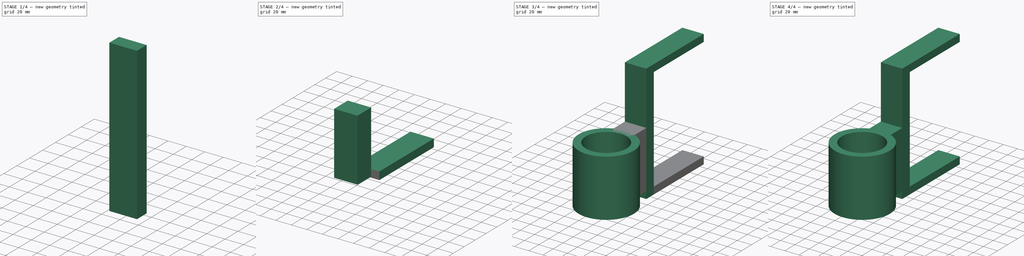
[diagram: build sequence overview — one tinted view per stage of 4, left to right]
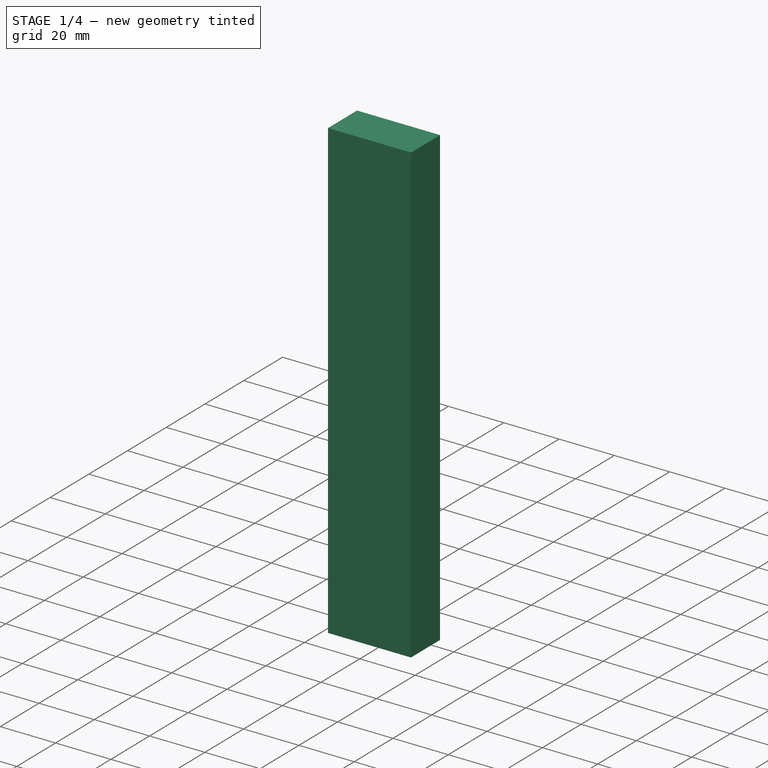
[diagram: stage 1 of 4 — iso view after this stage's code; geometry added in this stage tinted green]
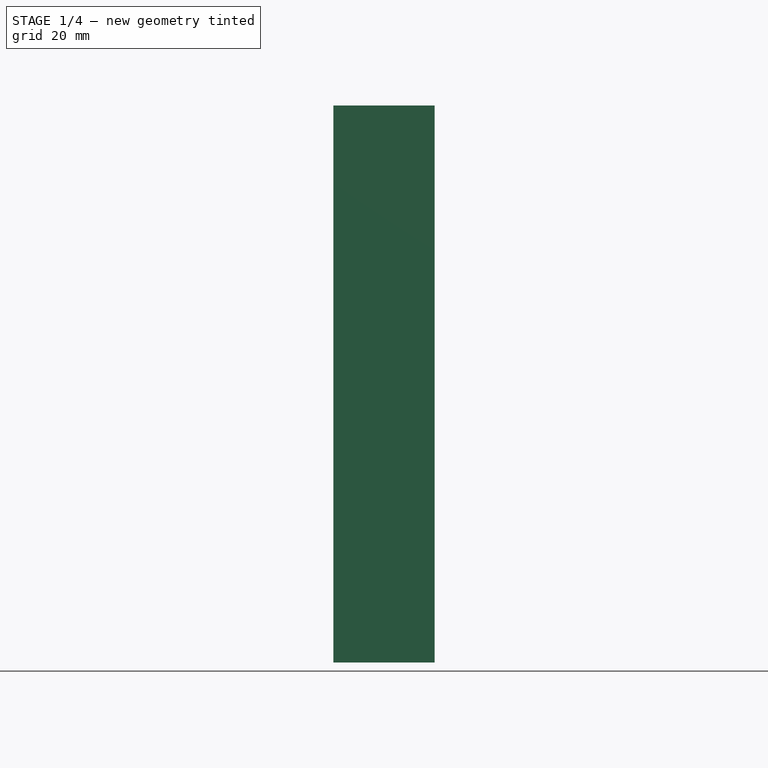
[diagram: stage 1 of 4 — front view after this stage's code; geometry added in this stage tinted green]
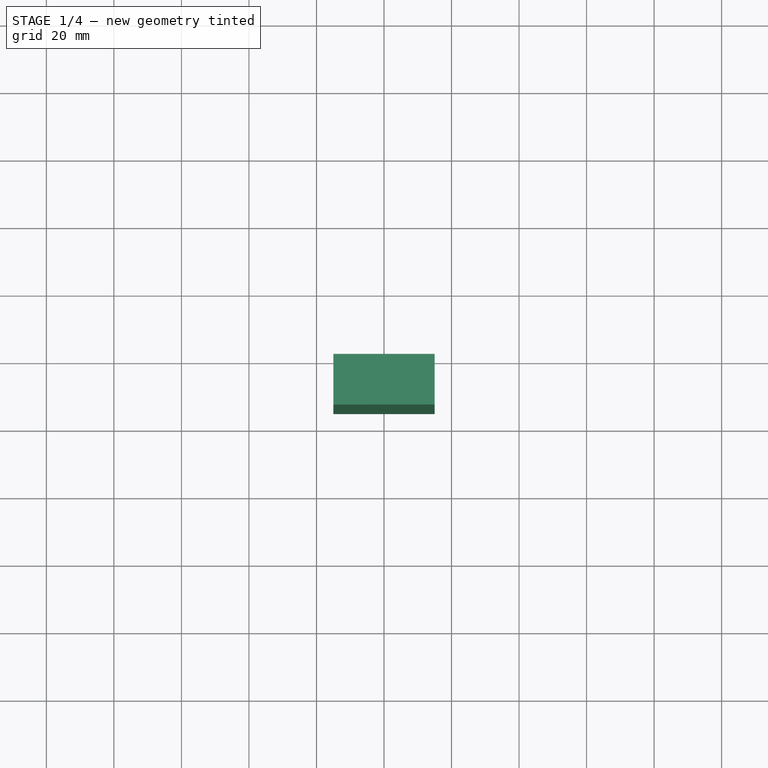
[diagram: stage 1 of 4 — top view after this stage's code; geometry added in this stage tinted green]
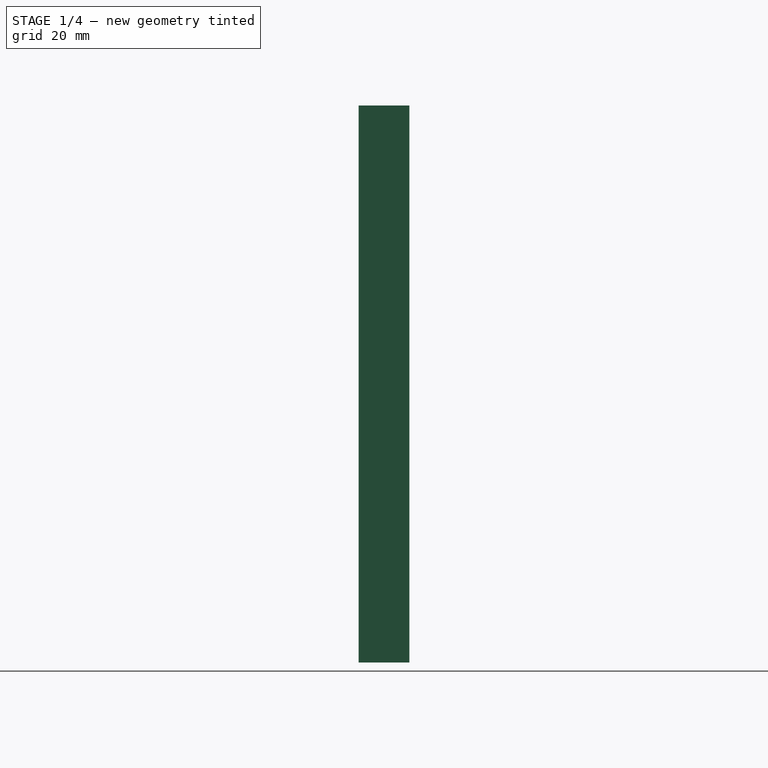
[diagram: stage 1 of 4 — right view after this stage's code; geometry added in this stage tinted green]
FCSTD DOCUMENT  (FreeCAD 0.20R29177 +426 (Git))
Label: HairDryerMount
License: All rights reserved
LicenseURL: http://en.wikipedia.org/wiki/All_rights_reserved
objects: Sketcher::SketchObject×4, Part::Extrusion×4, Part::FeaturePython×2, Part::Box×1, Part::MultiFuse×1, Part::Cut×1
note: 13 computed .brp shape members not serialized (recipe doc carries the construction recipe); baked Part::Feature solids carry a one-line shape summary decoded from their .brp

FEATURE [Part::Box] Box  label="Cube"
  AttacherType = Attacher::AttachEngine3D
  Height = 145
  Length = 200
  Width = 20
FEATURE [Sketcher::SketchObject] Sketch
  ExternalGeometry = -> [Box]
  FullyConstrained = true
  MapMode = 5
  Placement = pos=(0,0,0) rot=(1,0,0;1.5708rad)
  Support = -> [Box]
  sketch-geometry (12):
    g0: LineSegment StartX=85 StartY=0 StartZ=0 EndX=85 EndY=145 EndZ=0
    g1: LineSegment StartX=115 StartY=0 StartZ=0 EndX=115 EndY=145 EndZ=0
    g2: LineSegment StartX=0 StartY=0 StartZ=0 EndX=85 EndY=0 EndZ=0
    g3: LineSegment StartX=115 StartY=0 StartZ=0 EndX=200 EndY=0 EndZ=0
    g4: LineSegment StartX=85 StartY=0 StartZ=0 EndX=115 EndY=0 EndZ=0
    g5: LineSegment StartX=85 StartY=145 StartZ=0 EndX=115 EndY=145 EndZ=0
    g6: LineSegment StartX=85 StartY=145 StartZ=0 EndX=85 EndY=155 EndZ=0
    g7: LineSegment StartX=115 StartY=145 StartZ=0 EndX=115 EndY=155 EndZ=0
    g8: LineSegment StartX=85 StartY=155 StartZ=0 EndX=115 EndY=155 EndZ=0
    g9: LineSegment StartX=85 StartY=0 StartZ=0 EndX=85 EndY=-10 EndZ=0
    g10: LineSegment StartX=115 StartY=0 StartZ=0 EndX=115 EndY=-10 EndZ=0
    g11: LineSegment StartX=115 StartY=-10 StartZ=0 EndX=85 EndY=-10 EndZ=0
  constraints (32):
    c: PointOnObject(g0,g-4)
    c: PointOnObject(g1,g-4)
    c: Coincident(g2,g-6)
    c: Coincident(g2,g0)
    c: Horizontal(g2)
    c: Coincident(g3,g1)
    c: Coincident(g3,g-5)
    c: Horizontal(g3)
    c: Equal(g2,g3)
    c: Coincident(g4,g0)
    c: Coincident(g4,g1)
    c: Coincident(g5,g0)
    c: Coincident(g5,g1)
    c: Perpendicular(g5,g0)
    c: Perpendicular(g5,g1)
    c: DistanceX(g0,g1) = 30
    c: Coincident(g6,g0)
    c: Vertical(g6)
    c: Coincident(g7,g1)
    c: Vertical(g7)
    c: DistanceY(g6,g6) = 10
    c: Coincident(g8,g6)
    c: Coincident(g8,g7)
    c: Perpendicular(g6,g8)
    c: Coincident(g9,g0)
    c: Vertical(g9)
    c: Coincident(g10,g1)
    c: Vertical(g10)
    c: Coincident(g11,g10)
    c: Coincident(g11,g9)
    c: Horizontal(g11)
    c: DistanceY(g10,g10) = 10
FEATURE [Part::Extrusion] Extrude
  Base = -> Sketch
  Dir = (0,-1,2e-16)
  DirMode = 2
  FaceMakerClass = Part::FaceMakerBullseye
  LengthFwd = 15
  LengthRev = 0
  Solid = true
  Symmetric = false
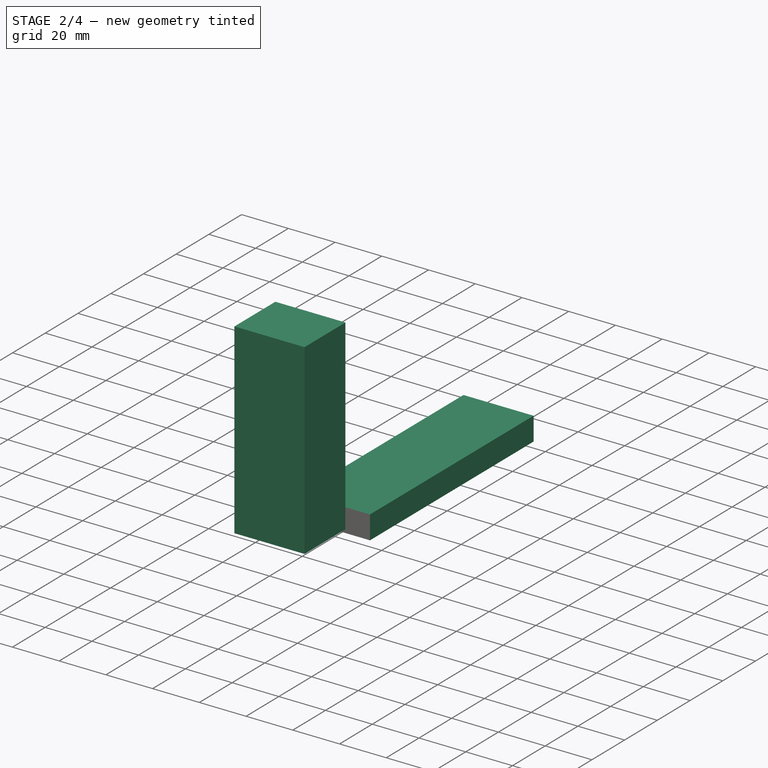
[diagram: stage 2 of 4 — iso view after this stage's code; geometry added in this stage tinted green]
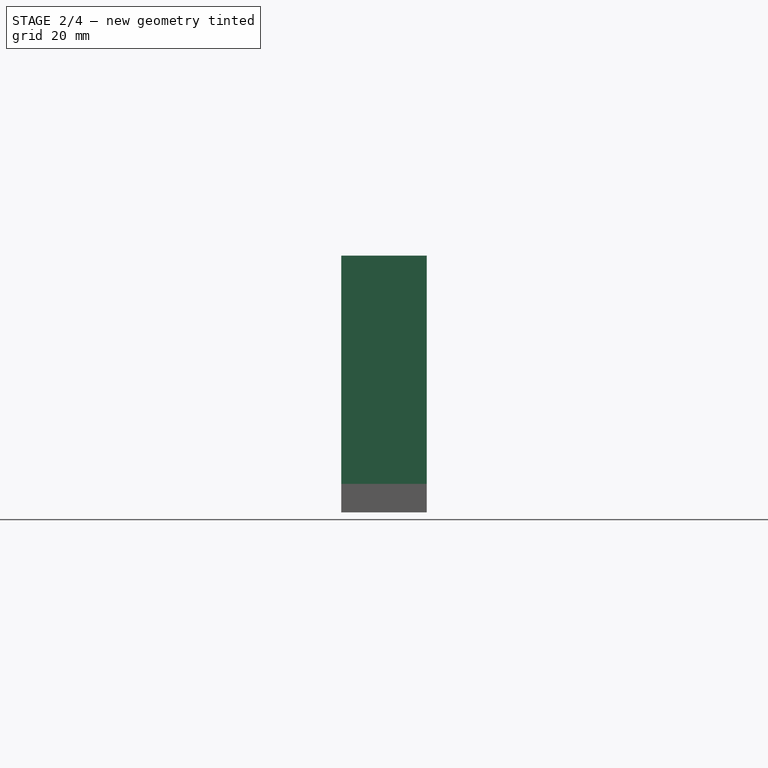
[diagram: stage 2 of 4 — front view after this stage's code; geometry added in this stage tinted green]
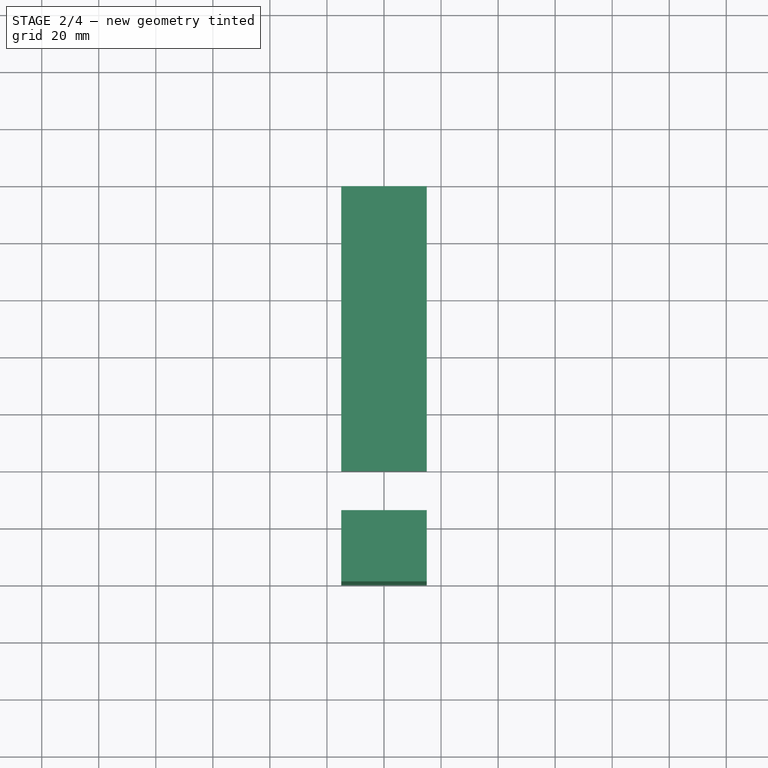
[diagram: stage 2 of 4 — top view after this stage's code; geometry added in this stage tinted green]
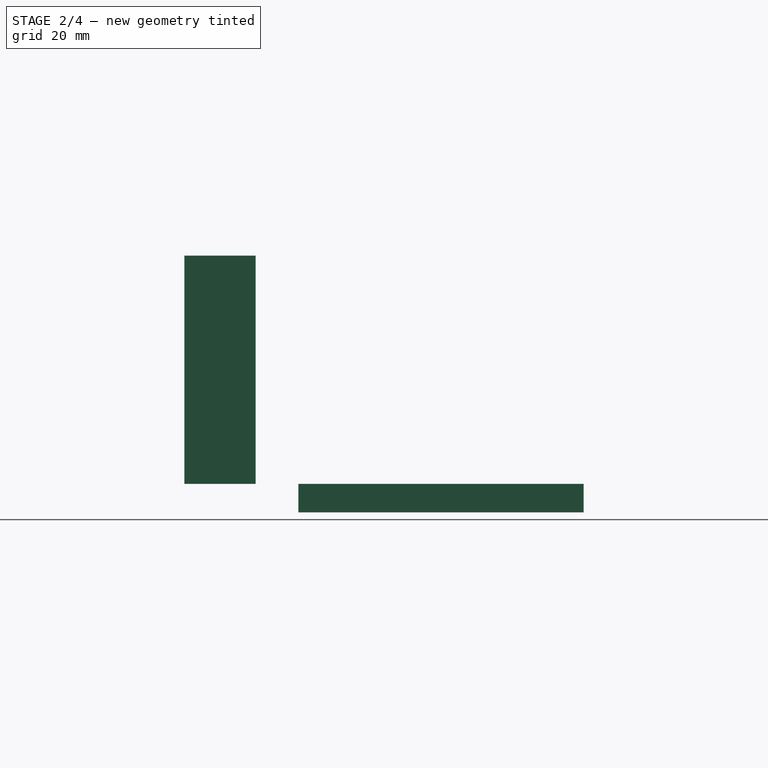
[diagram: stage 2 of 4 — right view after this stage's code; geometry added in this stage tinted green]
FEATURE [Part::Extrusion] Extrude002
  Base = -> Sketch002
  Dir = (0,1,-2e-16)
  DirMode = 2
  FaceMakerClass = Part::FaceMakerBullseye
  LengthFwd = 100
  LengthRev = 0
  Solid = true
  Symmetric = false
FEATURE [Sketcher::SketchObject] Sketch003
  ExternalGeometry = -> [Extrude]
  FullyConstrained = true
  MapMode = 5
  Placement = pos=(0,-15,3.3e-15) rot=(1,0,0;1.5708rad)
  Support = -> [Extrude]
  sketch-geometry (4):
    g0: LineSegment StartX=85 StartY=0 StartZ=0 EndX=115 EndY=0 EndZ=0
    g1: LineSegment StartX=115 StartY=0 StartZ=0 EndX=115 EndY=80 EndZ=0
    g2: LineSegment StartX=115 StartY=80 StartZ=0 EndX=85 EndY=80 EndZ=0
    g3: LineSegment StartX=85 StartY=80 StartZ=0 EndX=85 EndY=0 EndZ=0
  constraints (11):
    c: Coincident(g0,g1)
    c: Coincident(g1,g2)
    c: Coincident(g2,g3)
    c: Coincident(g3,g0)
    c: Horizontal(g0)
    c: Horizontal(g2)
    c: Vertical(g1)
    c: Vertical(g3)
    c: Coincident(g0,g-5)
    c: PointOnObject(g1,g-6)
    c: DistanceY(g1,g1) = 80
FEATURE [Part::Extrusion] Extrude003
  Base = -> Sketch003
  Dir = (0,-1,2e-16)
  DirMode = 2
  FaceMakerClass = Part::FaceMakerBullseye
  LengthFwd = 25
  LengthRev = 0
  Solid = true
  Symmetric = false
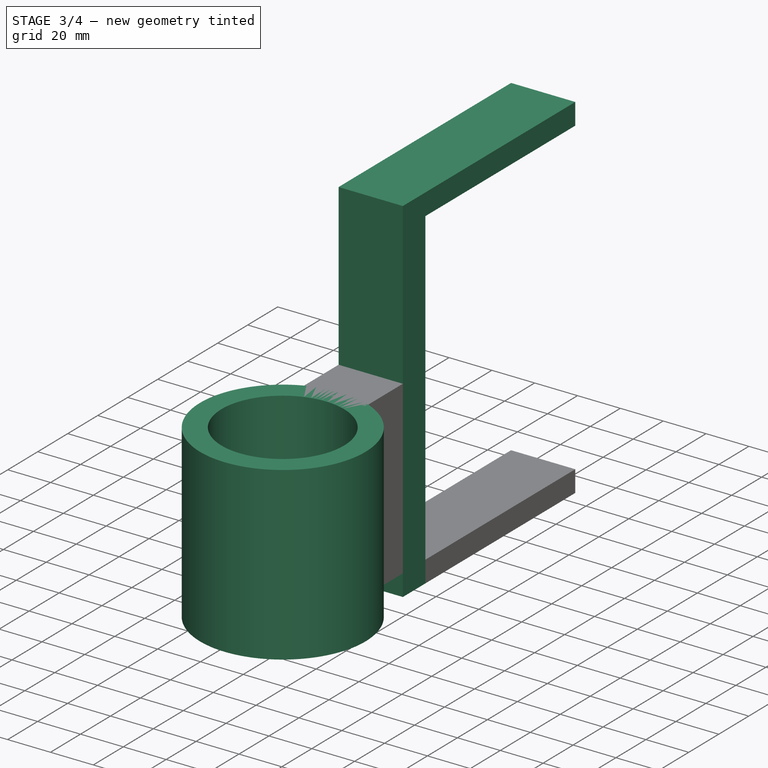
[diagram: stage 3 of 4 — iso view after this stage's code; geometry added in this stage tinted green]
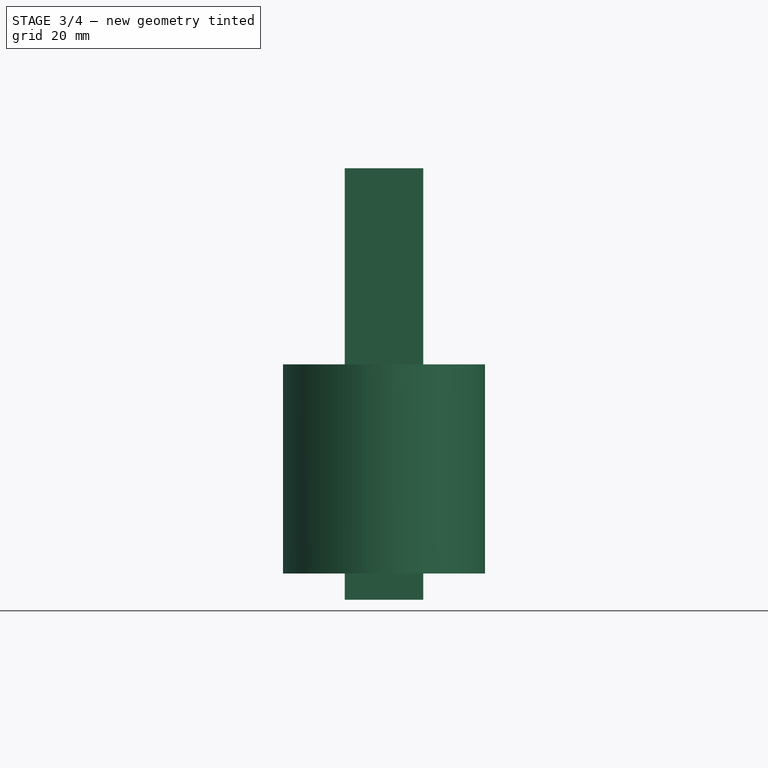
[diagram: stage 3 of 4 — front view after this stage's code; geometry added in this stage tinted green]
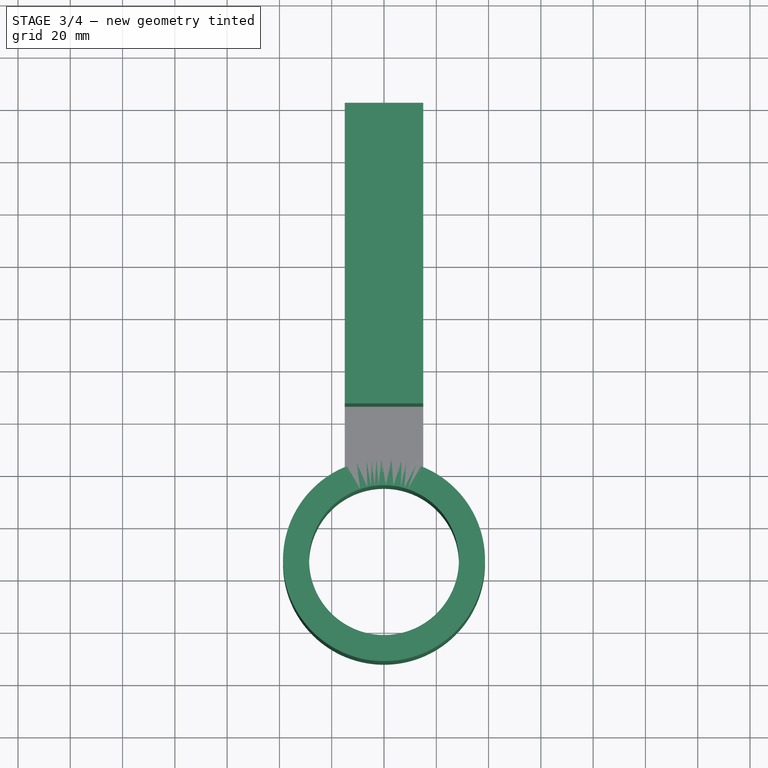
[diagram: stage 3 of 4 — top view after this stage's code; geometry added in this stage tinted green]
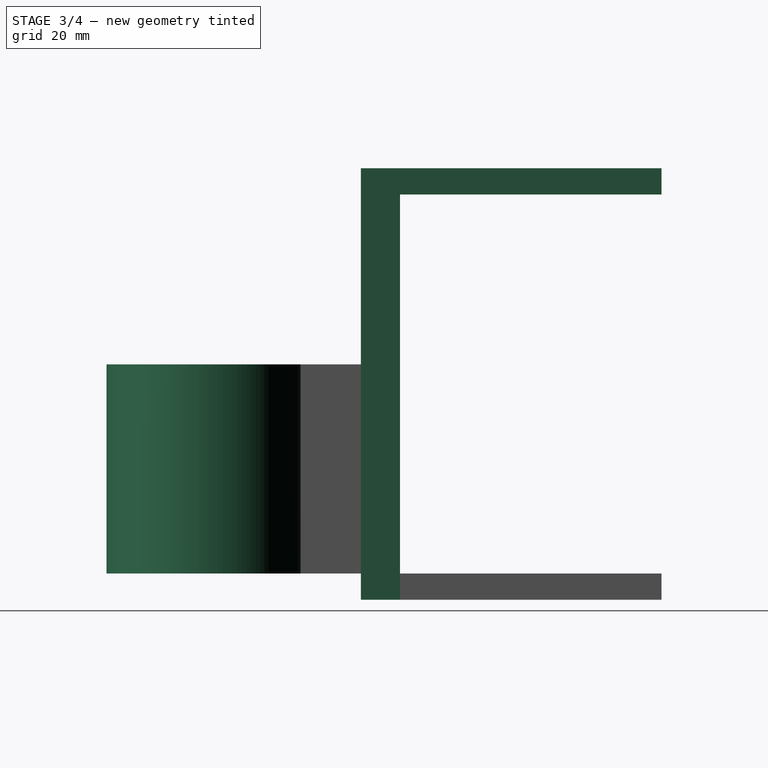
[diagram: stage 3 of 4 — right view after this stage's code; geometry added in this stage tinted green]
FEATURE [Sketcher::SketchObject] Sketch001
  ExternalGeometry = -> [Extrude]
  FullyConstrained = true
  MapMode = 5
  Placement = pos=(0,0,0) rot=(0,0.707107,0.707107;3.14159rad)
  Support = -> [Extrude]
  sketch-geometry (4):
    g0: LineSegment StartX=-85 StartY=155 StartZ=0 EndX=-115 EndY=155 EndZ=0
    g1: LineSegment StartX=-115 StartY=155 StartZ=0 EndX=-115 EndY=145 EndZ=0
    g2: LineSegment StartX=-115 StartY=145 StartZ=0 EndX=-85 EndY=145 EndZ=0
    g3: LineSegment StartX=-85 StartY=145 StartZ=0 EndX=-85 EndY=155 EndZ=0
  constraints (10):
    c: Coincident(g0,g1)
    c: Coincident(g1,g2)
    c: Coincident(g2,g3)
    c: Coincident(g3,g0)
    c: Horizontal(g0)
    c: Horizontal(g2)
    c: Vertical(g1)
    c: Vertical(g3)
    c: Coincident(g0,g-4)
    c: Coincident(g1,g-3)
FEATURE [Sketcher::SketchObject] Sketch002
  ExternalGeometry = -> [Extrude]
  FullyConstrained = true
  MapMode = 5
  Placement = pos=(0,0,0) rot=(0,0.707107,0.707107;3.14159rad)
  Support = -> [Extrude]
  sketch-geometry (4):
    g0: LineSegment StartX=-115 StartY=0 StartZ=0 EndX=-85 EndY=0 EndZ=0
    g1: LineSegment StartX=-85 StartY=0 StartZ=0 EndX=-85 EndY=-10 EndZ=0
    g2: LineSegment StartX=-85 StartY=-10 StartZ=0 EndX=-115 EndY=-10 EndZ=0
    g3: LineSegment StartX=-115 StartY=-10 StartZ=0 EndX=-115 EndY=0 EndZ=0
  constraints (10):
    c: Coincident(g0,g1)
    c: Coincident(g1,g2)
    c: Coincident(g2,g3)
    c: Coincident(g3,g0)
    c: Horizontal(g0)
    c: Horizontal(g2)
    c: Vertical(g1)
    c: Vertical(g3)
    c: Coincident(g0,g-3)
    c: Coincident(g1,g-4)
FEATURE [Part::Extrusion] Extrude001
  Base = -> Sketch001
  Dir = (0,1,-2e-16)
  DirMode = 2
  FaceMakerClass = Part::FaceMakerBullseye
  LengthFwd = 100
  LengthRev = 0
  Solid = true
  Symmetric = false
FEATURE [Part::FeaturePython] Tube001  # WARN: FeaturePython — macro-defined, semantics opaque (R4)
  AttacherType = Attacher::AttachEngine3D
  Height = 80
  InnerRadius = 28.6479
  OuterRadius = 38.6479
  Placement = pos=(100,-73.65,0) rot=(0,0,1;0rad)
  expr: InnerRadius = 180 / (2 * pi)
  expr: OuterRadius = 180 / (2 * pi) + 10
FEATURE [Part::MultiFuse] Fusion
  Shapes = -> [Extrude,Extrude001,Extrude002,Extrude003]
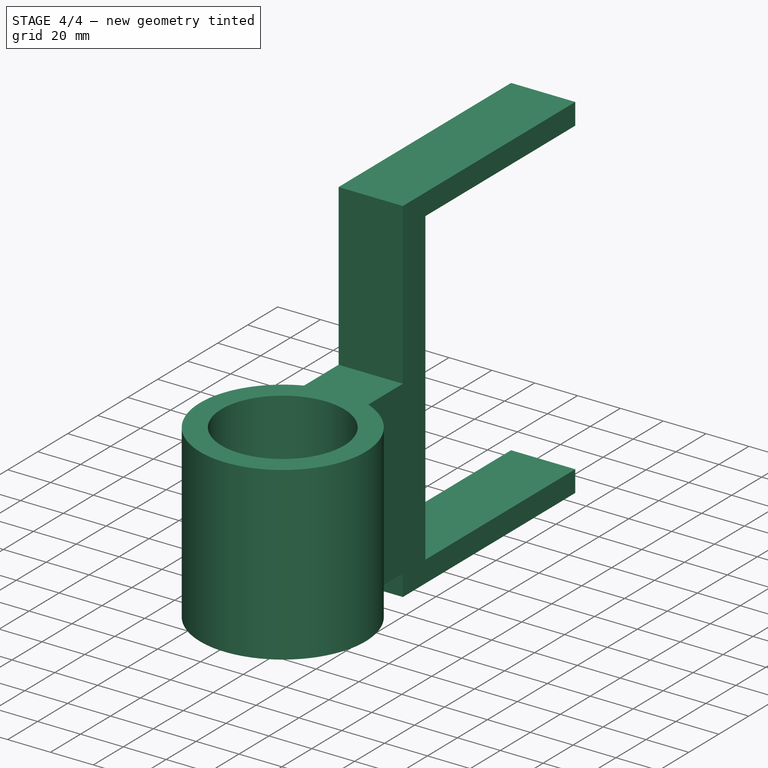
[diagram: stage 4 of 4 — iso view after this stage's code; geometry added in this stage tinted green]
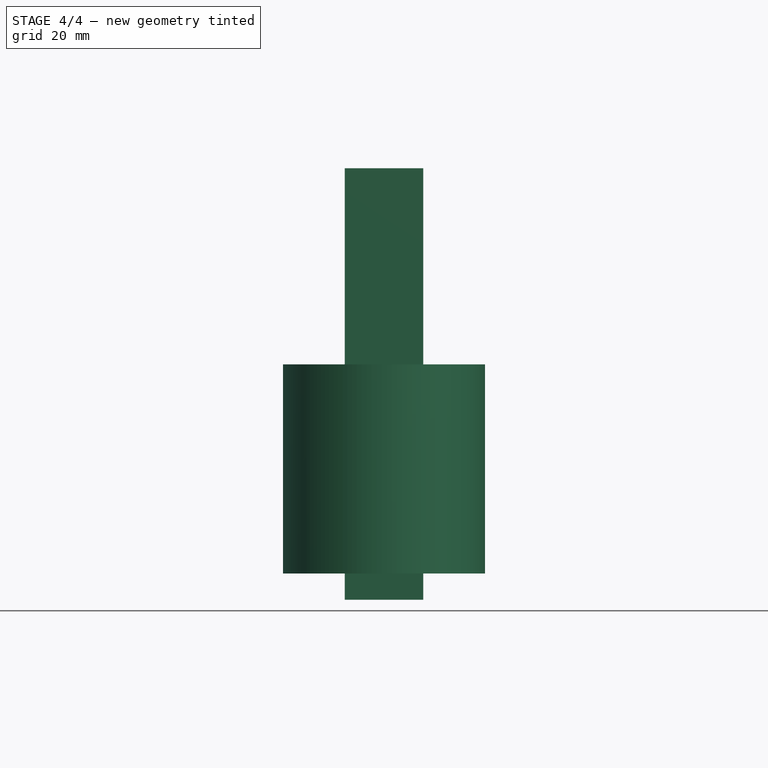
[diagram: stage 4 of 4 — front view after this stage's code; geometry added in this stage tinted green]
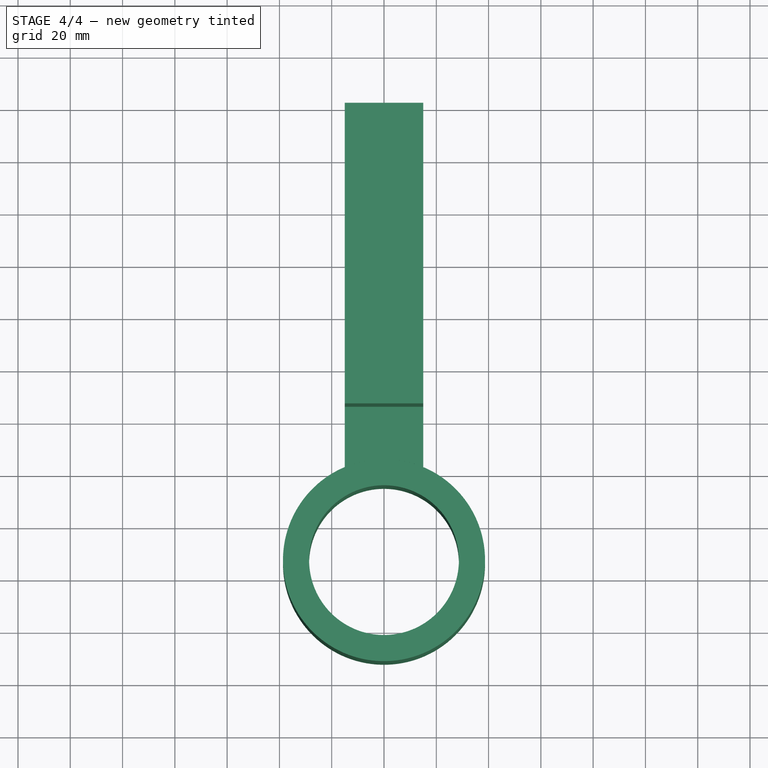
[diagram: stage 4 of 4 — top view after this stage's code; geometry added in this stage tinted green]
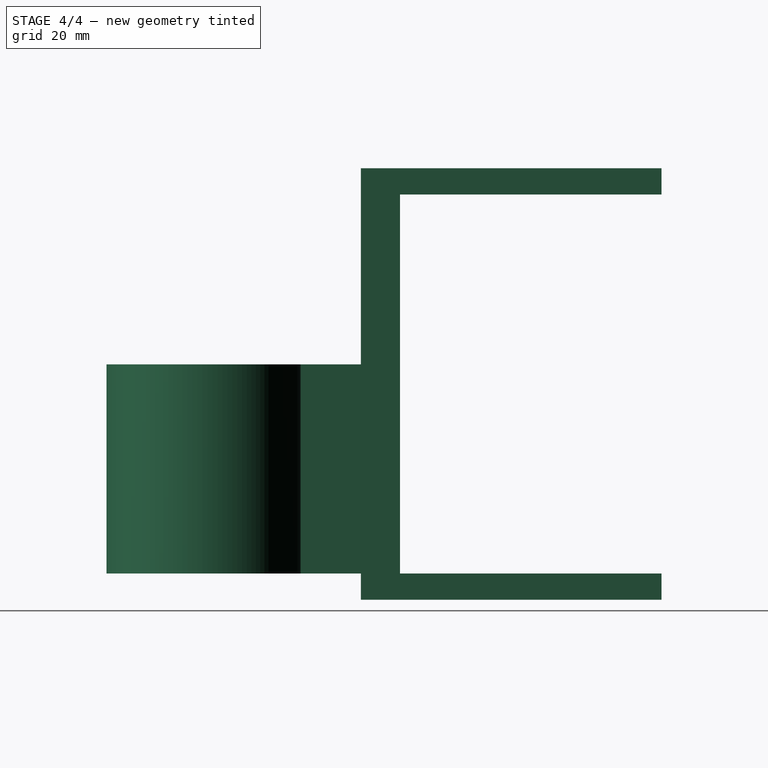
[diagram: stage 4 of 4 — right view after this stage's code; geometry added in this stage tinted green]
FEATURE [Part::FeaturePython] Tube  # WARN: FeaturePython — macro-defined, semantics opaque (R4)
  AttacherType = Attacher::AttachEngine3D
  Height = 80
  InnerRadius = 28.6479
  OuterRadius = 38.6479
  Placement = pos=(100,-73.65,0) rot=(0,0,1;0rad)
  expr: InnerRadius = 180 / (2 * pi)
  expr: OuterRadius = 180 / (2 * pi) + 10
FEATURE [Part::Cut] Cut  label="Hanger"
  Base = -> Fusion
  Tool = -> Tube001
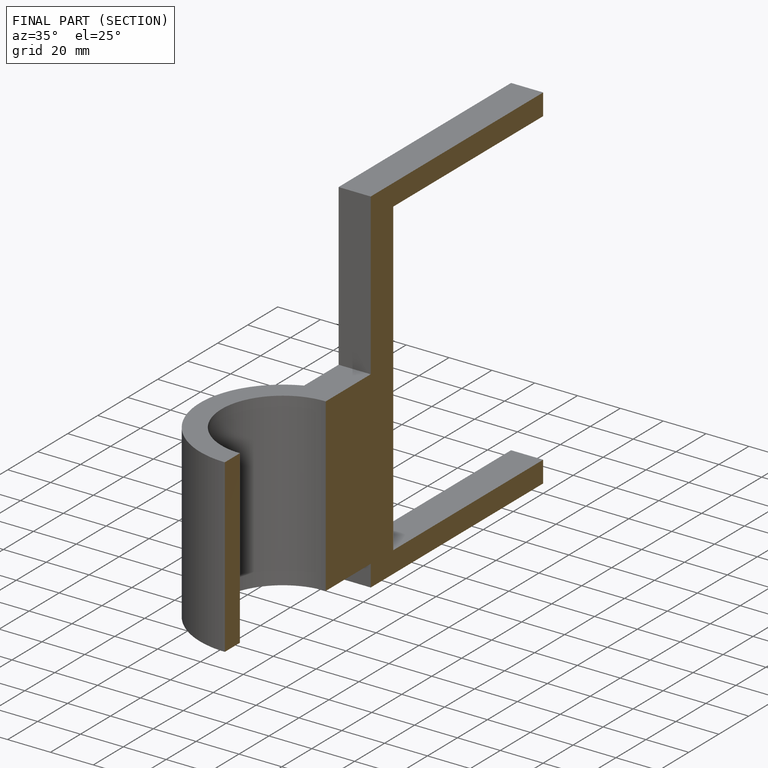
[diagram: finished part — half-section view (interior)]
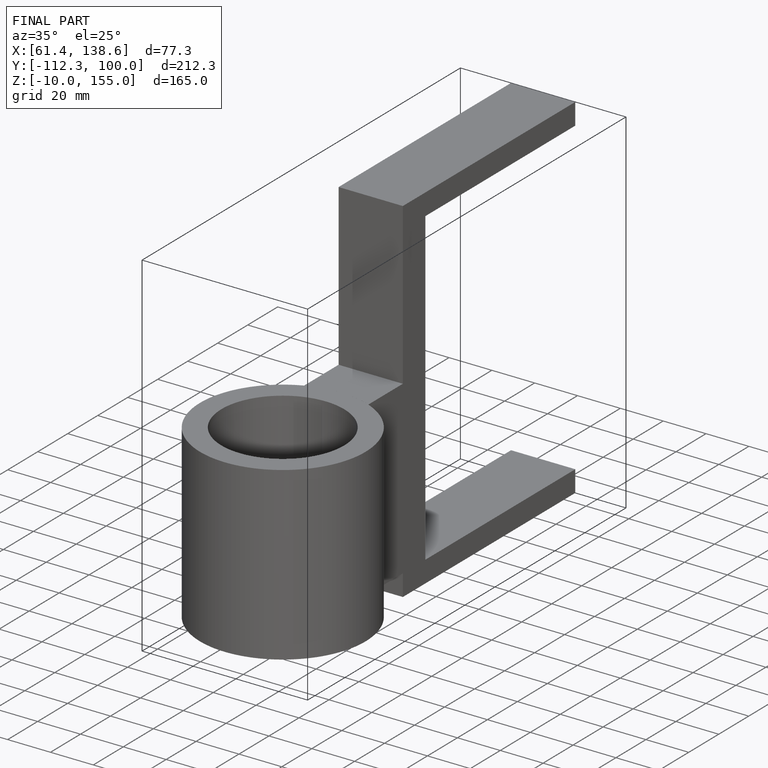
[diagram: finished part — iso view with bounding-box wireframe]
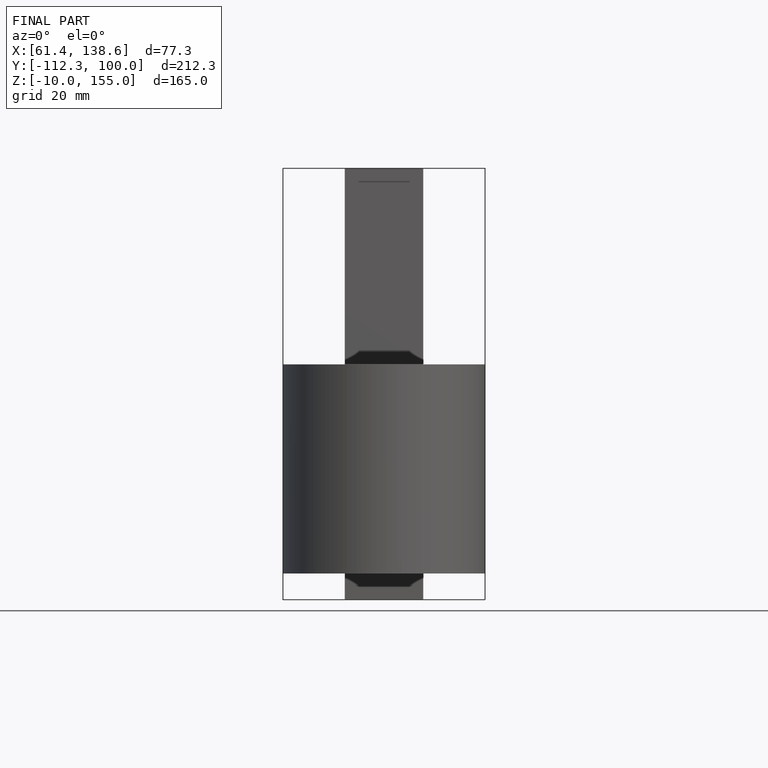
[diagram: finished part — front view with bounding-box wireframe]
